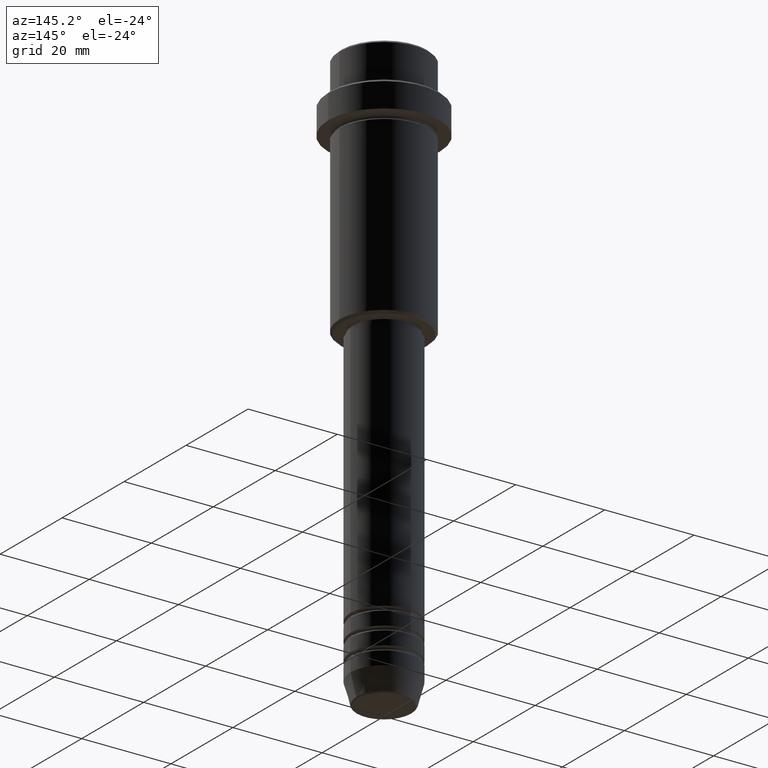
[diagram: clean part render]
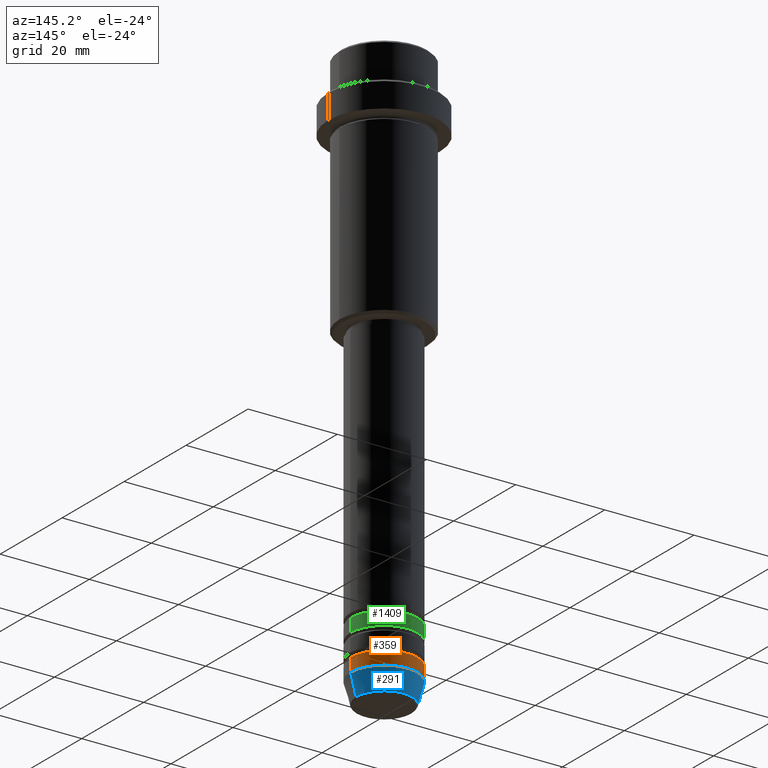
[diagram: same view with three faces highlighted in distinct colors, each labeled with its STEP entity id]
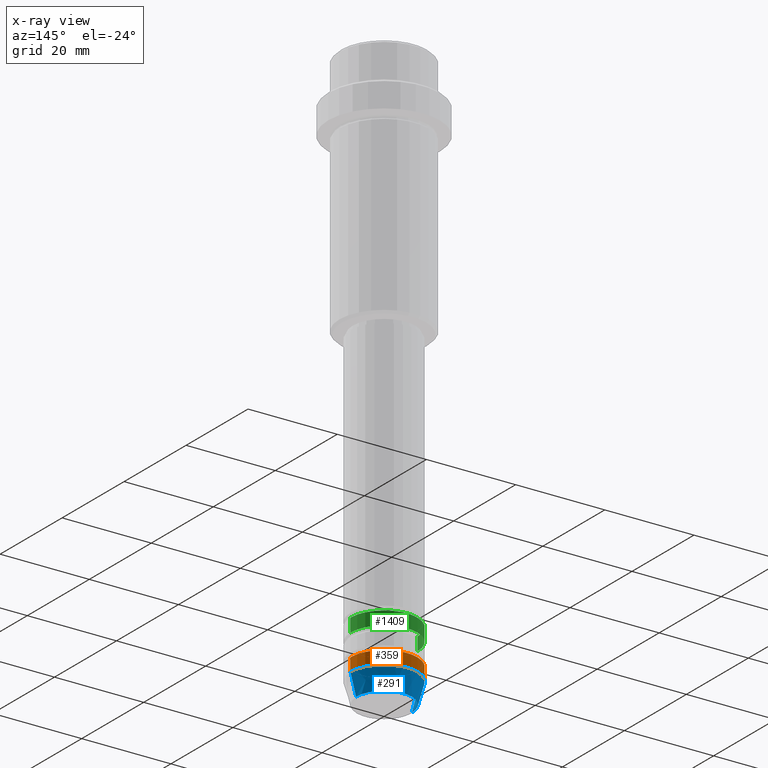
[diagram: x-ray of the same camera — body ghosted, the three highlighted faces saturated]
A machine part, auxiliary view with three faces highlighted in distinct colors.
The next image is the same camera in x-ray (body ghosted, the three faces saturated) — at least one of them is partly hidden behind the body in this view.
Their STEP definitions:

[orange] entity #359 — the highlighted cylindrical surface (partial cylindrical patch) has radius 7.5 mm, axis along (-0, -0, 1).
#27 = CIRCLE ( 'NONE', #1396, 7.500000000000000000 ) ;
#29 = AXIS2_PLACEMENT_3D ( 'NONE', #437, #109, #1337 ) ;
#48 = CYLINDRICAL_SURFACE ( 'NONE', #1408, 7.500000000000000000 ) ;
#82 = VERTEX_POINT ( 'NONE', #1192 ) ;
#109 = DIRECTION ( 'NONE',  ( -0.000000000000000000, -0.000000000000000000, 1.000000000000000000 ) ) ;
#130 = ORIENTED_EDGE ( 'NONE', *, *, #1114, .T. ) ;
#228 = DIRECTION ( 'NONE',  ( -0.000000000000000000, -0.000000000000000000, 1.000000000000000000 ) ) ;
#346 = CARTESIAN_POINT ( 'NONE',  ( 0.000000000000000000, 0.000000000000000000, -125.0000000000000000 ) ) ;
#359 = ADVANCED_FACE ( 'NONE', ( #706 ), #48, .T. ) ;
#390 = LINE ( 'NONE', #696, #889 ) ;
#437 = CARTESIAN_POINT ( 'NONE',  ( 0.000000000000000000, 0.000000000000000000, -122.0000000000000000 ) ) ;
#474 = CARTESIAN_POINT ( 'NONE',  ( 0.000000000000000000, 0.000000000000000000, 0.000000000000000000 ) ) ;
#681 = CARTESIAN_POINT ( 'NONE',  ( 7.500000000000000000, 0.000000000000000000, -122.0000000000000000 ) ) ;
#696 = CARTESIAN_POINT ( 'NONE',  ( -7.500000000000000000, 9.184850993605147944E-16, 0.000000000000000000 ) ) ;
#706 = FACE_OUTER_BOUND ( 'NONE', #1378, .T. ) ;
#720 = DIRECTION ( 'NONE',  ( -0.000000000000000000, -0.000000000000000000, 1.000000000000000000 ) ) ;
#722 = DIRECTION ( 'NONE',  ( 1.000000000000000000, 0.000000000000000000, 0.000000000000000000 ) ) ;
#802 = EDGE_CURVE ( 'NONE', #82, #1312, #390, .T. ) ;
#889 = VECTOR ( 'NONE', #720, 1000.000000000000000 ) ;
#897 = CARTESIAN_POINT ( 'NONE',  ( 7.500000000000000000, 0.000000000000000000, 0.000000000000000000 ) ) ;
#903 = DIRECTION ( 'NONE',  ( 1.000000000000000000, 0.000000000000000000, 0.000000000000000000 ) ) ;
#910 = VECTOR ( 'NONE', #1417, 1000.000000000000000 ) ;
#1027 = ORIENTED_EDGE ( 'NONE', *, *, #1400, .F. ) ;
#1103 = EDGE_CURVE ( 'NONE', #1346, #1212, #1203, .T. ) ;
#1107 = ORIENTED_EDGE ( 'NONE', *, *, #1103, .F. ) ;
#1109 = CIRCLE ( 'NONE', #29, 7.500000000000000000 ) ;
#1114 = EDGE_CURVE ( 'NONE', #1346, #82, #27, .T. ) ;
#1128 = CARTESIAN_POINT ( 'NONE',  ( 7.500000000000000000, 0.000000000000000000, -125.0000000000000000 ) ) ;
#1192 = CARTESIAN_POINT ( 'NONE',  ( -7.500000000000000000, 9.184850993605147944E-16, -125.0000000000000000 ) ) ;
#1203 = LINE ( 'NONE', #897, #910 ) ;
#1212 = VERTEX_POINT ( 'NONE', #681 ) ;
#1266 = DIRECTION ( 'NONE',  ( -0.000000000000000000, -0.000000000000000000, 1.000000000000000000 ) ) ;
#1312 = VERTEX_POINT ( 'NONE', #1348 ) ;
#1337 = DIRECTION ( 'NONE',  ( 1.000000000000000000, 0.000000000000000000, 0.000000000000000000 ) ) ;
#1346 = VERTEX_POINT ( 'NONE', #1128 ) ;
#1348 = CARTESIAN_POINT ( 'NONE',  ( -7.500000000000000000, 9.184850993605147944E-16, -122.0000000000000000 ) ) ;
#1370 = ORIENTED_EDGE ( 'NONE', *, *, #802, .T. ) ;
#1378 = EDGE_LOOP ( 'NONE', ( #130, #1370, #1027, #1107 ) ) ;
#1396 = AXIS2_PLACEMENT_3D ( 'NONE', #346, #228, #903 ) ;
#1400 = EDGE_CURVE ( 'NONE', #1212, #1312, #1109, .T. ) ;
#1408 = AXIS2_PLACEMENT_3D ( 'NONE', #474, #1266, #722 ) ;
#1417 = DIRECTION ( 'NONE',  ( -0.000000000000000000, -0.000000000000000000, 1.000000000000000000 ) ) ;

[blue] entity #291 — the highlighted conical surface has half-angle 15 deg.
#27 = CIRCLE ( 'NONE', #1396, 7.500000000000000000 ) ;
#39 = EDGE_CURVE ( 'NONE', #1219, #1346, #757, .T. ) ;
#82 = VERTEX_POINT ( 'NONE', #1192 ) ;
#115 = EDGE_CURVE ( 'NONE', #338, #82, #532, .T. ) ;
#134 = AXIS2_PLACEMENT_3D ( 'NONE', #602, #1352, #837 ) ;
#189 = CARTESIAN_POINT ( 'NONE',  ( -7.500000000000000000, 9.184850993605147944E-16, -125.0000000000000000 ) ) ;
#228 = DIRECTION ( 'NONE',  ( -0.000000000000000000, -0.000000000000000000, 1.000000000000000000 ) ) ;
#273 = ORIENTED_EDGE ( 'NONE', *, *, #1114, .F. ) ;
#291 = ADVANCED_FACE ( 'NONE', ( #1200 ), #737, .T. ) ;
#338 = VERTEX_POINT ( 'NONE', #608 ) ;
#343 = EDGE_CURVE ( 'NONE', #1219, #338, #345, .T. ) ;
#345 = CIRCLE ( 'NONE', #134, 6.259553456999438659 ) ;
#346 = CARTESIAN_POINT ( 'NONE',  ( 0.000000000000000000, 0.000000000000000000, -125.0000000000000000 ) ) ;
#532 = LINE ( 'NONE', #189, #683 ) ;
#576 = DIRECTION ( 'NONE',  ( -0.000000000000000000, -0.000000000000000000, 1.000000000000000000 ) ) ;
#602 = CARTESIAN_POINT ( 'NONE',  ( 0.000000000000000000, 0.000000000000000000, -129.6294095225512422 ) ) ;
#608 = CARTESIAN_POINT ( 'NONE',  ( -6.259553456999438659, 8.425296549405629486E-16, -129.6294095225512422 ) ) ;
#683 = VECTOR ( 'NONE', #1284, 1000.000000000000000 ) ;
#690 = CARTESIAN_POINT ( 'NONE',  ( 0.000000000000000000, 0.000000000000000000, -125.0000000000000000 ) ) ;
#737 = CONICAL_SURFACE ( 'NONE', #946, 7.500000000000000000, 0.2617993877991500740 ) ;
#757 = LINE ( 'NONE', #1172, #1411 ) ;
#812 = ORIENTED_EDGE ( 'NONE', *, *, #39, .F. ) ;
#837 = DIRECTION ( 'NONE',  ( 1.000000000000000000, 0.000000000000000000, 0.000000000000000000 ) ) ;
#903 = DIRECTION ( 'NONE',  ( 1.000000000000000000, 0.000000000000000000, 0.000000000000000000 ) ) ;
#946 = AXIS2_PLACEMENT_3D ( 'NONE', #690, #576, #996 ) ;
#996 = DIRECTION ( 'NONE',  ( 1.000000000000000000, 0.000000000000000000, 0.000000000000000000 ) ) ;
#1018 = ORIENTED_EDGE ( 'NONE', *, *, #115, .T. ) ;
#1114 = EDGE_CURVE ( 'NONE', #1346, #82, #27, .T. ) ;
#1128 = CARTESIAN_POINT ( 'NONE',  ( 7.500000000000000000, 0.000000000000000000, -125.0000000000000000 ) ) ;
#1172 = CARTESIAN_POINT ( 'NONE',  ( 7.500000000000000000, 0.000000000000000000, -125.0000000000000000 ) ) ;
#1192 = CARTESIAN_POINT ( 'NONE',  ( -7.500000000000000000, 9.184850993605147944E-16, -125.0000000000000000 ) ) ;
#1197 = CARTESIAN_POINT ( 'NONE',  ( 6.259553456999438659, 0.000000000000000000, -129.6294095225512422 ) ) ;
#1200 = FACE_OUTER_BOUND ( 'NONE', #1331, .T. ) ;
#1219 = VERTEX_POINT ( 'NONE', #1197 ) ;
#1234 = ORIENTED_EDGE ( 'NONE', *, *, #343, .T. ) ;
#1284 = DIRECTION ( 'NONE',  ( -0.2588190451025213501, 3.169619151431772337E-17, 0.9659258262890680902 ) ) ;
#1331 = EDGE_LOOP ( 'NONE', ( #1234, #1018, #273, #812 ) ) ;
#1346 = VERTEX_POINT ( 'NONE', #1128 ) ;
#1352 = DIRECTION ( 'NONE',  ( -0.000000000000000000, -0.000000000000000000, 1.000000000000000000 ) ) ;
#1396 = AXIS2_PLACEMENT_3D ( 'NONE', #346, #228, #903 ) ;
#1405 = DIRECTION ( 'NONE',  ( 0.2588190451025213501, 0.000000000000000000, 0.9659258262890680902 ) ) ;
#1411 = VECTOR ( 'NONE', #1405, 1000.000000000000000 ) ;

[green] entity #1409 — the highlighted cylindrical surface (partial cylindrical patch) has radius 7.5 mm, axis along (-0, -0, 1).
#1 = CARTESIAN_POINT ( 'NONE',  ( 0.000000000000000000, 0.000000000000000000, 0.000000000000000000 ) ) ;
#14 = ORIENTED_EDGE ( 'NONE', *, *, #783, .T. ) ;
#15 = LINE ( 'NONE', #1007, #1323 ) ;
#55 = AXIS2_PLACEMENT_3D ( 'NONE', #1, #431, #1236 ) ;
#102 = DIRECTION ( 'NONE',  ( -0.000000000000000000, -0.000000000000000000, 1.000000000000000000 ) ) ;
#151 = DIRECTION ( 'NONE',  ( -0.000000000000000000, -0.000000000000000000, 1.000000000000000000 ) ) ;
#152 = DIRECTION ( 'NONE',  ( -0.000000000000000000, -0.000000000000000000, 1.000000000000000000 ) ) ;
#158 = CARTESIAN_POINT ( 'NONE',  ( -7.500000000000000000, 9.184850993605147944E-16, -113.9999999999998863 ) ) ;
#184 = EDGE_CURVE ( 'NONE', #1164, #1316, #1057, .T. ) ;
#283 = ORIENTED_EDGE ( 'NONE', *, *, #184, .F. ) ;
#327 = CARTESIAN_POINT ( 'NONE',  ( 7.500000000000000000, 0.000000000000000000, -113.9999999999998863 ) ) ;
#410 = ORIENTED_EDGE ( 'NONE', *, *, #1163, .F. ) ;
#431 = DIRECTION ( 'NONE',  ( -0.000000000000000000, -0.000000000000000000, 1.000000000000000000 ) ) ;
#590 = AXIS2_PLACEMENT_3D ( 'NONE', #1230, #151, #923 ) ;
#705 = LINE ( 'NONE', #808, #815 ) ;
#783 = EDGE_CURVE ( 'NONE', #1287, #1316, #705, .T. ) ;
#786 = CARTESIAN_POINT ( 'NONE',  ( 0.000000000000000000, 0.000000000000000000, -113.9999999999998863 ) ) ;
#800 = CARTESIAN_POINT ( 'NONE',  ( -7.500000000000000000, 9.184850993605147944E-16, -116.9999999999998863 ) ) ;
#808 = CARTESIAN_POINT ( 'NONE',  ( -7.500000000000000000, 9.184850993605147944E-16, 0.000000000000000000 ) ) ;
#815 = VECTOR ( 'NONE', #152, 1000.000000000000000 ) ;
#827 = ORIENTED_EDGE ( 'NONE', *, *, #1300, .T. ) ;
#839 = VERTEX_POINT ( 'NONE', #1365 ) ;
#912 = CIRCLE ( 'NONE', #590, 7.500000000000000000 ) ;
#922 = FACE_OUTER_BOUND ( 'NONE', #1033, .T. ) ;
#923 = DIRECTION ( 'NONE',  ( 1.000000000000000000, 0.000000000000000000, 0.000000000000000000 ) ) ;
#1007 = CARTESIAN_POINT ( 'NONE',  ( 7.500000000000000000, 0.000000000000000000, 0.000000000000000000 ) ) ;
#1011 = DIRECTION ( 'NONE',  ( 1.000000000000000000, 0.000000000000000000, 0.000000000000000000 ) ) ;
#1033 = EDGE_LOOP ( 'NONE', ( #827, #14, #283, #410 ) ) ;
#1057 = CIRCLE ( 'NONE', #1360, 7.500000000000000000 ) ;
#1163 = EDGE_CURVE ( 'NONE', #839, #1164, #15, .T. ) ;
#1164 = VERTEX_POINT ( 'NONE', #327 ) ;
#1220 = DIRECTION ( 'NONE',  ( -0.000000000000000000, -0.000000000000000000, 1.000000000000000000 ) ) ;
#1229 = CYLINDRICAL_SURFACE ( 'NONE', #55, 7.500000000000000000 ) ;
#1230 = CARTESIAN_POINT ( 'NONE',  ( 0.000000000000000000, 0.000000000000000000, -116.9999999999998863 ) ) ;
#1236 = DIRECTION ( 'NONE',  ( 1.000000000000000000, 0.000000000000000000, 0.000000000000000000 ) ) ;
#1287 = VERTEX_POINT ( 'NONE', #800 ) ;
#1300 = EDGE_CURVE ( 'NONE', #839, #1287, #912, .T. ) ;
#1316 = VERTEX_POINT ( 'NONE', #158 ) ;
#1323 = VECTOR ( 'NONE', #102, 1000.000000000000000 ) ;
#1360 = AXIS2_PLACEMENT_3D ( 'NONE', #786, #1220, #1011 ) ;
#1365 = CARTESIAN_POINT ( 'NONE',  ( 7.500000000000000000, 0.000000000000000000, -116.9999999999998863 ) ) ;
#1409 = ADVANCED_FACE ( 'NONE', ( #922 ), #1229, .T. ) ;